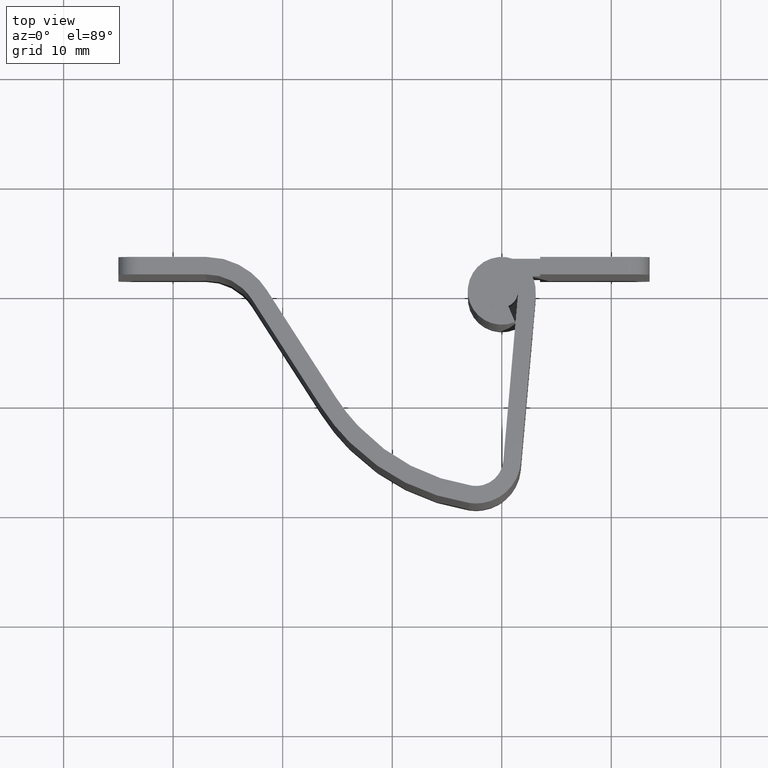
[diagram: clean part render]
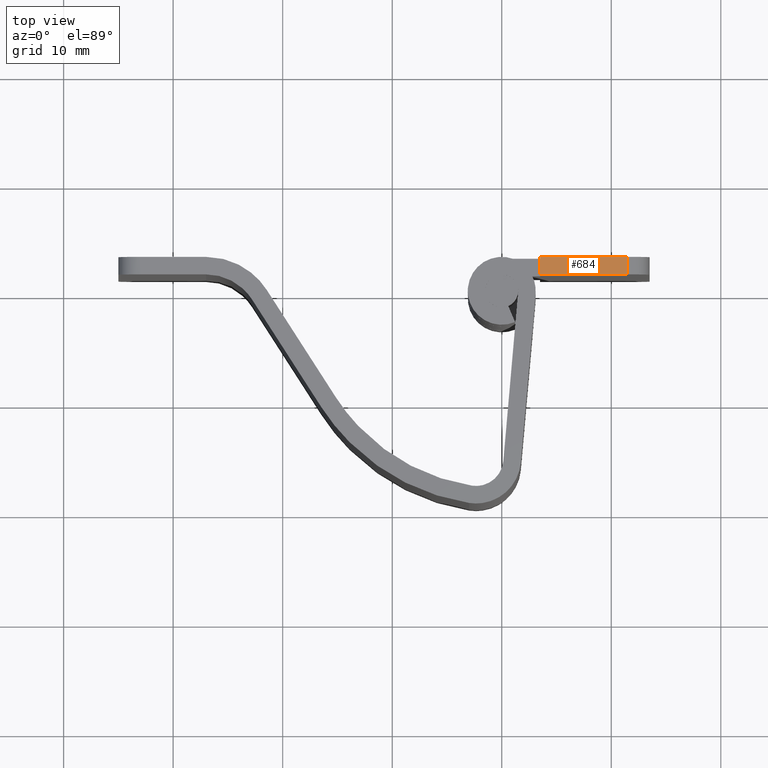
[diagram: same view with one face highlighted and labeled with its STEP entity id]
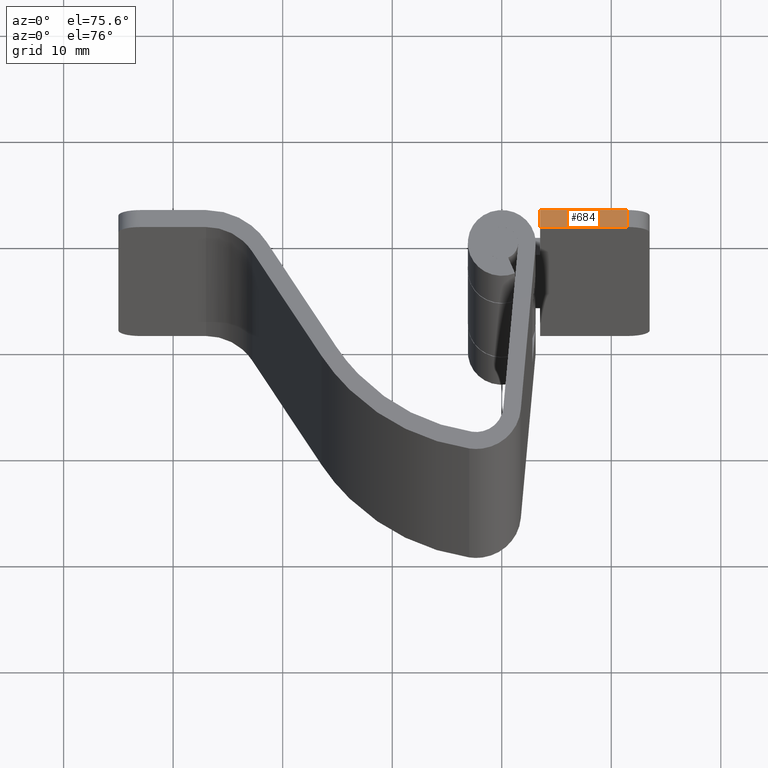
[diagram: same view with one face highlighted and labeled with its STEP entity id]
A machine part, top view. The second image highlights one B-rep face of the part: STEP entity #684.
A second angle (auxiliary view) of the same face is appended — the face is thin or edge-on in the first view.
In plain terms, the highlighted face is a freeform B-spline surface patch.
Its self-contained STEP definition (entity closure, byte-faithful):
#296=CARTESIAN_POINT('',(3.499999999999915,1.500000000000000,40.0));
#297=VERTEX_POINT('',#296);
#298=CARTESIAN_POINT('',(3.499999999999915,3.099998000000000,40.0));
#299=VERTEX_POINT('',#298);
#300=CARTESIAN_POINT('',(3.499999999999915,1.500000000000000,40.0));
#301=CARTESIAN_POINT('',(3.499999999999915,3.099998000000000,40.0));
#302=QUASI_UNIFORM_CURVE('',1,(#300,#301),.UNSPECIFIED.,.F.,.U.);
#303=EDGE_CURVE('',#297,#299,#302,.T.);
#517=CARTESIAN_POINT('',(11.500000000000000,3.099998000000000,40.0));
#518=VERTEX_POINT('',#517);
#534=CARTESIAN_POINT('',(11.500000000000000,1.500000000000000,40.0));
#535=VERTEX_POINT('',#534);
#536=CARTESIAN_POINT('',(11.500000000000000,1.500000000000000,40.0));
#537=CARTESIAN_POINT('',(11.500000000000000,3.099998000000000,40.0));
#538=QUASI_UNIFORM_CURVE('',1,(#536,#537),.UNSPECIFIED.,.F.,.U.);
#539=EDGE_CURVE('',#535,#518,#538,.T.);
#665=CARTESIAN_POINT('',(3.100400015505463,1.420080103001106,40.0));
#666=CARTESIAN_POINT('',(11.899600199071180,1.420080103001106,40.0));
#667=CARTESIAN_POINT('',(3.100400015505463,3.179917939914184,40.0));
#668=CARTESIAN_POINT('',(11.899600199071180,3.179917939914184,40.0));
#669=B_SPLINE_SURFACE_WITH_KNOTS('',1,1,((#665,#667),(#666,#668)),.UNSPECIFIED.,.F.,.F.,.U.,(2,2),(2,2),(0.0,8.799200183565715),(0.041708334948495,0.958291687403247),.UNSPECIFIED.);
#670=ORIENTED_EDGE('',*,*,#303,.F.);
#671=CARTESIAN_POINT('',(11.500000000000000,1.500000000000000,40.0));
#672=CARTESIAN_POINT('',(3.499999999999915,1.500000000000000,40.0));
#673=QUASI_UNIFORM_CURVE('',1,(#671,#672),.UNSPECIFIED.,.F.,.U.);
#674=EDGE_CURVE('',#535,#297,#673,.T.);
#675=ORIENTED_EDGE('',*,*,#674,.F.);
#676=ORIENTED_EDGE('',*,*,#539,.T.);
#677=CARTESIAN_POINT('',(3.499999999999915,3.099998000000000,40.0));
#678=CARTESIAN_POINT('',(11.500000000000000,3.099998000000000,40.0));
#679=QUASI_UNIFORM_CURVE('',1,(#677,#678),.UNSPECIFIED.,.F.,.U.);
#680=EDGE_CURVE('',#299,#518,#679,.T.);
#681=ORIENTED_EDGE('',*,*,#680,.F.);
#682=EDGE_LOOP('',(#670,#675,#676,#681));
#683=FACE_OUTER_BOUND('',#682,.T.);
#684=ADVANCED_FACE('',(#683),#669,.T.);